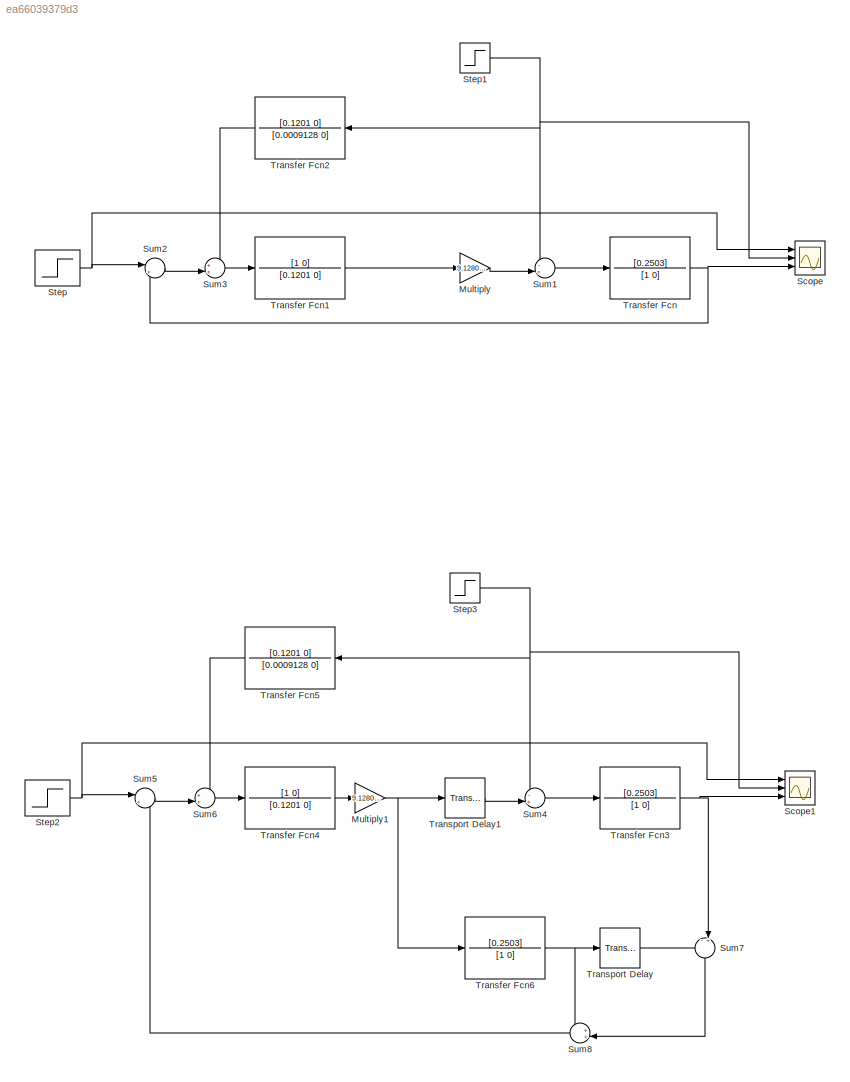
MODEL slx_ea66039379d3
KIND model
CONFIG AbsTol = auto
CONFIG EnableMultiTasking = off
CONFIG FixedStep = auto
CONFIG MaxStep = auto
CONFIG MinStep = auto
CONFIG RelTol = 1e-3
CONFIG SampleTimeConstraint = Unconstrained
CONFIG Solver = VariableStepAuto
CONFIG SolverName = VariableStepAuto
CONFIG StartTime = 0.0
CONFIG StopTime = 10000
BLOCK [Gain] Multiply
  Gain = 9.1280*0.0001
BLOCK [Gain] Multiply1
  Gain = 9.1280*0.0001
BLOCK [Scope] Scope
  Floating = off
  NumInputPorts = 3
  Ports = [3]
  ScopeSpecificationString = Simulink.scopes.TimeScopeBlockCfg('CurrentConfiguration', extmgr.ConfigurationSet(extmgr.Configuration('Core','General UI',true),extmgr.Configuration('Core','Source UI',true),extmgr.Configuration('Sources','WiredSimulink',true),extmgr.Configuration('Visuals','Time Domain',true,'SerializedDisplays',{struct('MinYLimReal','-0.125','MaxYLimReal','1.125','YLabelReal','','MinYLimMag','0.00000','MaxYLimM...<+1411ch>
BLOCK [Scope] Scope1
  Floating = off
  NumInputPorts = 3
  Ports = [3]
  ScopeSpecificationString = Simulink.scopes.TimeScopeBlockCfg('CurrentConfiguration', extmgr.ConfigurationSet(extmgr.Configuration('Core','General UI',true),extmgr.Configuration('Core','Source UI',true),extmgr.Configuration('Sources','WiredSimulink',true,'DataLoggingVariableName','ScopeData1'),extmgr.Configuration('Visuals','Time Domain',true,'SerializedDisplays',{struct('MinYLimReal','-0.125','MaxYLimReal','1.125','YLabelRe...<+1450ch>
BLOCK [Step] Step
  SampleTime = 0
  Time = 100
BLOCK [Step] Step1
  SampleTime = 0
  Time = 5000
BLOCK [Step] Step2
  SampleTime = 0
  Time = 100
BLOCK [Step] Step3
  SampleTime = 0
  Time = 5000
BLOCK [Sum] Sum1
  Inputs = -+|
  Ports = [2, 1]
BLOCK [Sum] Sum2
  Inputs = |+-
  Ports = [2, 1]
BLOCK [Sum] Sum3
  Inputs = ++|
  Ports = [2, 1]
BLOCK [Sum] Sum4
  Inputs = -+|
  Ports = [2, 1]
BLOCK [Sum] Sum5
  Inputs = |+-
  Ports = [2, 1]
BLOCK [Sum] Sum6
  Inputs = ++|
  Ports = [2, 1]
BLOCK [Sum] Sum7
  Inputs = -+|
  NameLocation = left
  Ports = [2, 1]
BLOCK [Sum] Sum8
  Inputs = ++|
  NameLocation = top
  Ports = [2, 1]
BLOCK [TransferFcn] Transfer Fcn
  Denominator = [1 0]
  Numerator = [0.2503]
BLOCK [TransferFcn] Transfer Fcn1
  Denominator = [0.1201 0]
  Numerator = [1 0]
BLOCK [TransferFcn] Transfer Fcn2
  Denominator = [0.0009128 0]
  NameLocation = top
  Numerator = [0.1201  0]
BLOCK [TransferFcn] Transfer Fcn3
  Denominator = [1 0]
  Numerator = [0.2503]
BLOCK [TransferFcn] Transfer Fcn4
  Denominator = [0.1201 0]
  Numerator = [1 0]
BLOCK [TransferFcn] Transfer Fcn5
  Denominator = [0.0009128 0]
  NameLocation = top
  Numerator = [0.1201  0]
BLOCK [TransferFcn] Transfer Fcn6
  Denominator = [1 0]
  Numerator = [0.2503]
BLOCK [TransportDelay] Transport Delay
  Ports = [1, 1]
BLOCK [TransportDelay] Transport Delay1
  Ports = [1, 1]
NET Multiply1:1 -> Transfer Fcn6:1, Transport Delay1:1
LINE Multiply:1 -> Sum1:2
NET Step1:1 -> Scope:2, Sum1:1, Transfer Fcn2:1
NET Step2:1 -> Scope1:1, Sum5:1
NET Step3:1 -> Scope1:2, Sum4:1, Transfer Fcn5:1
NET Step:1 -> Scope:1, Sum2:1
LINE Sum1:1 -> Transfer Fcn:1
LINE Sum2:1 -> Sum3:2
LINE Sum3:1 -> Transfer Fcn1:1
LINE Sum4:1 -> Transfer Fcn3:1
LINE Sum5:1 -> Sum6:2
LINE Sum6:1 -> Transfer Fcn4:1
LINE Sum7:1 -> Sum8:2
LINE Sum8:1 -> Sum5:2
LINE Transfer Fcn1:1 -> Multiply:1
LINE Transfer Fcn2:1 -> Sum3:1
NET Transfer Fcn3:1 -> Scope1:3, Sum7:2
LINE Transfer Fcn4:1 -> Multiply1:1
LINE Transfer Fcn5:1 -> Sum6:1
NET Transfer Fcn6:1 -> Sum8:1, Transport Delay:1
NET Transfer Fcn:1 -> Scope:3, Sum2:2
LINE Transport Delay1:1 -> Sum4:2
LINE Transport Delay:1 -> Sum7:1
note: NET lines group one-source signal fan-out (src -> all destinations, sorted); 1:1 wires keep LINE
